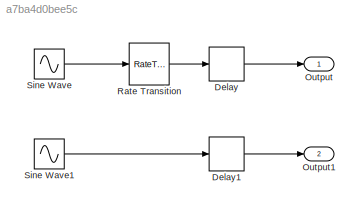
MODEL slx_a7ba4d0bee5c
KIND model
CONFIG AbsTol = auto
CONFIG EnableMultiTasking = off
CONFIG FixedStep = 0.1
CONFIG MaxStep = auto
CONFIG MinStep = auto
CONFIG RelTol = 1e-3
CONFIG SampleTimeConstraint = Unconstrained
CONFIG Solver = FixedStepDiscrete
CONFIG SolverName = FixedStepDiscrete
CONFIG StartTime = 0.0
CONFIG StopTime = 10.0
BLOCK [Delay] Delay
  DelayLength = 1
  InputPortMap = u0
  Ports = [1, 1]
  SampleTime = 1
BLOCK [Delay] Delay1
  DelayLength = 1
  InputPortMap = u0
  Ports = [1, 1]
  SampleTime = 1
BLOCK [Outport] Output
  IconDisplay = Port number
BLOCK [Outport] Output1
  IconDisplay = Port number
  Port = 2
BLOCK [RateTransition] Rate Transition
BLOCK [Sin] Sine Wave
  Ports = [0, 1]
  SampleTime = 0.2
BLOCK [Sin] Sine Wave1
  Ports = [0, 1]
  SampleTime = 0.2
LINE Delay1:1 -> Output1:1
LINE Delay:1 -> Output:1
LINE Rate Transition:1 -> Delay:1
LINE Sine Wave1:1 -> Delay1:1
LINE Sine Wave:1 -> Rate Transition:1
